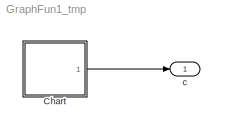
MODEL GraphFun1_tmp
KIND model
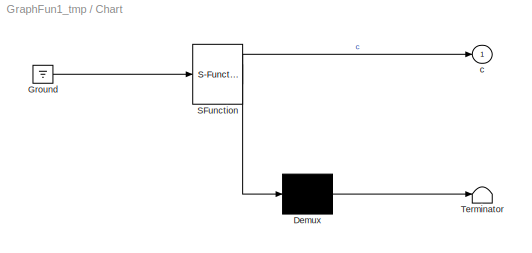
BLOCK [SubSystem] Chart
  ErrorFcn = Stateflow.Translate.translate
  PermitHierarchicalResolution = ParametersOnly
  Ports = [0, 1]
  RequestExecContextInheritance = off
  SFBlockType = Chart
  SID = 1
  TreatAsAtomicUnit = on
  Variant = off
BLOCK [Demux] Chart/ Demux 
  Outputs = 1
  Ports = [1, 1]
  SID = 1::11
BLOCK [Ground] Chart/ Ground 
  SID = 1::13
BLOCK [S-Function] Chart/ SFunction 
  EnableBusSupport = off
  FunctionName = sf_sfun
  PortCounts = [1 2]
  Ports = [1, 2]
  SFunctionDeploymentMode = off
  SID = 1::10
  Tag = Stateflow S-Function GraphFun1_tmp 1
BLOCK [Terminator] Chart/ Terminator 
  SID = 1::12
BLOCK [Outport] Chart/c
  IconDisplay = Port number
  SID = 1::5
BLOCK [Outport] c
  IconDisplay = Port number
  SID = 2
LINE Chart/ Demux :1 -> Chart/ Terminator :1
LINE Chart/ Ground :1 -> Chart/ SFunction :1
LINE Chart/ SFunction :1 -> Chart/ Demux :1
LINE Chart/ SFunction :2 -> Chart/c:1
LINE Chart:1 -> c:1
CHART Chart states=3 transitions=4
  STATE_LABEL 'A/\\nen:a=3;b=4'
  STATE_LABEL 'B/\\nen:a=5;b=12'
  STATE_LABEL 'z=f(x,y)'
